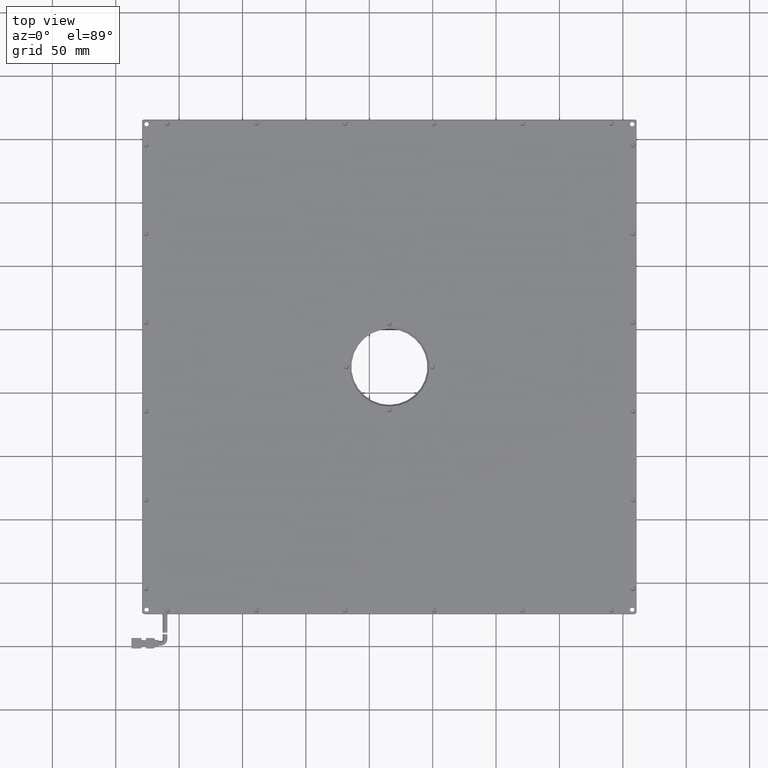
[diagram: clean part render]
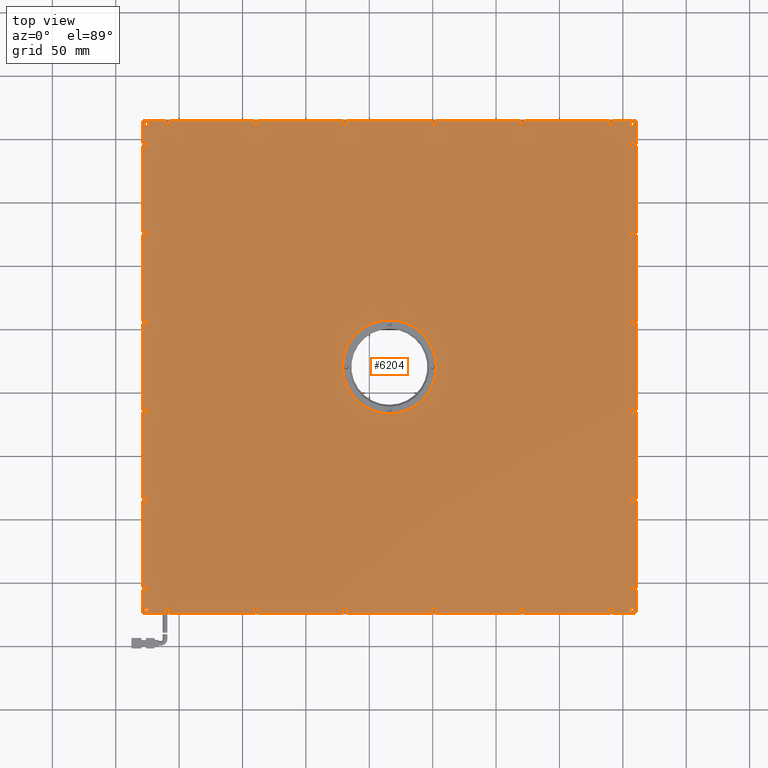
[diagram: same view with one face highlighted and labeled with its STEP entity id]
A machine part, top view. The second image highlights one B-rep face of the part: STEP entity #6204.
In plain terms, the highlighted planar face has unit normal (0, -0, 1).
Its self-contained STEP definition (entity closure, byte-faithful):
#106 = CARTESIAN_POINT ( 'NONE',  ( -228.6484017985390300, -173.3699202458416000, 8.249999999999998200 ) ) ;
#121 = ORIENTED_EDGE ( 'NONE', *, *, #3332, .F. ) ;
#127 = EDGE_CURVE ( 'NONE', #14940, #16800, #13112, .T. ) ;
#214 = CARTESIAN_POINT ( 'NONE',  ( 159.8515982014210400, -154.5770270270286900, 8.250000000019097600 ) ) ;
#224 = EDGE_CURVE ( 'NONE', #21458, #5366, #345, .T. ) ;
#294 = CIRCLE ( 'NONE', #15483, 2.000000000020818500 ) ;
#329 = VERTEX_POINT ( 'NONE', #16714 ) ;
#335 = DIRECTION ( 'NONE',  ( 0.0000000000000000000, -1.000000000000000000, -0.0000000000000000000 ) ) ;
#344 = EDGE_LOOP ( 'NONE', ( #16915, #20841 ) ) ;
#345 = CIRCLE ( 'NONE', #17201, 2.000000000001889200 ) ;
#376 = CIRCLE ( 'NONE', #1715, 1.999999999998169900 ) ;
#400 = DIRECTION ( 'NONE',  ( -0.0000000000000000000, 0.0000000000000000000, -1.000000000000000000 ) ) ;
#469 = CARTESIAN_POINT ( 'NONE',  ( -225.6484017985369500, 211.9229729729738900, 8.250000000000000000 ) ) ;
#560 = FACE_BOUND ( 'NONE', #13933, .T. ) ;
#561 = AXIS2_PLACEMENT_3D ( 'NONE', #13973, #8873, #12468 ) ;
#616 = ORIENTED_EDGE ( 'NONE', *, *, #2227, .T. ) ;
#702 = DIRECTION ( 'NONE',  ( 1.000000000000000000, 0.0000000000000000000, 0.0000000000000000000 ) ) ;
#719 = CARTESIAN_POINT ( 'NONE',  ( 157.3515982014610000, 211.9229729729719300, 8.250000000000000000 ) ) ;
#804 = CIRCLE ( 'NONE', #11376, 37.00000000000000000 ) ;
#848 = CARTESIAN_POINT ( 'NONE',  ( -226.1484017985371200, 195.4229729729738900, 8.250000000019097600 ) ) ;
#920 = VERTEX_POINT ( 'NONE', #11372 ) ;
#933 = DIRECTION ( 'NONE',  ( 1.000000000000000000, 0.0000000000000000000, 0.0000000000000000000 ) ) ;
#965 = DIRECTION ( 'NONE',  ( -0.0000000000000000000, 0.0000000000000000000, -1.000000000000000000 ) ) ;
#1048 = CIRCLE ( 'NONE', #17950, 1.999999999959895000 ) ;
#1051 = DIRECTION ( 'NONE',  ( 1.000000000000000000, 0.0000000000000000000, 0.0000000000000000000 ) ) ;
#1062 = LINE ( 'NONE', #5685, #1857 ) ;
#1084 = DIRECTION ( 'NONE',  ( -0.0000000000000000000, 0.0000000000000000000, -1.000000000000000000 ) ) ;
#1097 = DIRECTION ( 'NONE',  ( 1.000000000000000000, 0.0000000000000000000, 0.0000000000000000000 ) ) ;
#1115 = CIRCLE ( 'NONE', #8807, 2.000000000020929500 ) ;
#1166 = DIRECTION ( 'NONE',  ( 0.0000000000000000000, 0.0000000000000000000, -1.000000000000000000 ) ) ;
#1248 = AXIS2_PLACEMENT_3D ( 'NONE', #469, #17506, #17430 ) ;
#1264 = AXIS2_PLACEMENT_3D ( 'NONE', #18135, #21480, #21404 ) ;
#1401 = VERTEX_POINT ( 'NONE', #12460 ) ;
#1459 = ORIENTED_EDGE ( 'NONE', *, *, #1553, .T. ) ;
#1488 = EDGE_CURVE ( 'NONE', #9508, #920, #5321, .T. ) ;
#1495 = EDGE_CURVE ( 'NONE', #18182, #11986, #20502, .T. ) ;
#1512 = AXIS2_PLACEMENT_3D ( 'NONE', #11261, #1084, #21407 ) ;
#1553 = EDGE_CURVE ( 'NONE', #7418, #10586, #6089, .T. ) ;
#1604 = DIRECTION ( 'NONE',  ( 1.000000000000000000, 0.0000000000000000000, 0.0000000000000000000 ) ) ;
#1632 = EDGE_CURVE ( 'NONE', #13581, #17172, #3954, .T. ) ;
#1641 = FACE_BOUND ( 'NONE', #1968, .T. ) ;
#1692 = VERTEX_POINT ( 'NONE', #8111 ) ;
#1715 = AXIS2_PLACEMENT_3D ( 'NONE', #15251, #6771, #8385 ) ;
#1740 = DIRECTION ( 'NONE',  ( 1.000000000000000000, 0.0000000000000000000, 0.0000000000000000000 ) ) ;
#1795 = EDGE_CURVE ( 'NONE', #19374, #7748, #10325, .T. ) ;
#1835 = VERTEX_POINT ( 'NONE', #2100 ) ;
#1839 = AXIS2_PLACEMENT_3D ( 'NONE', #11857, #8241, #1740 ) ;
#1857 = VECTOR ( 'NONE', #9172, 1000.000000000000000 ) ;
#1896 = EDGE_LOOP ( 'NONE', ( #12820, #2421 ) ) ;
#1968 = EDGE_LOOP ( 'NONE', ( #4720, #3666 ) ) ;
#1984 = ORIENTED_EDGE ( 'NONE', *, *, #14584, .T. ) ;
#2009 = CIRCLE ( 'NONE', #18911, 2.000000000034613200 ) ;
#2010 = VERTEX_POINT ( 'NONE', #19399 ) ;
#2051 = CARTESIAN_POINT ( 'NONE',  ( 155.8515982015017300, 125.4229729729713400, 8.250000000019097600 ) ) ;
#2072 = AXIS2_PLACEMENT_3D ( 'NONE', #19282, #20976, #17614 ) ;
#2091 = ORIENTED_EDGE ( 'NONE', *, *, #14010, .T. ) ;
#2100 = CARTESIAN_POINT ( 'NONE',  ( 159.8515982014210400, 195.4229729729713400, 8.250000000019097600 ) ) ;
#2109 = DIRECTION ( 'NONE',  ( 0.0000000000000000000, 0.0000000000000000000, -1.000000000000000000 ) ) ;
#2169 = DIRECTION ( 'NONE',  ( -0.0000000000000000000, 0.0000000000000000000, -1.000000000000000000 ) ) ;
#2174 = VERTEX_POINT ( 'NONE', #6108 ) ;
#2227 = EDGE_CURVE ( 'NONE', #8717, #11346, #17779, .T. ) ;
#2291 = EDGE_LOOP ( 'NONE', ( #11383, #16863 ) ) ;
#2309 = CARTESIAN_POINT ( 'NONE',  ( -225.6484017985369500, 211.9229729729738900, 8.250000000000000000 ) ) ;
#2343 = CARTESIAN_POINT ( 'NONE',  ( -228.1484017985390300, 125.4229729729738900, 8.250000000019097600 ) ) ;
#2377 = DIRECTION ( 'NONE',  ( -0.0000000000000000000, 0.0000000000000000000, -1.000000000000000000 ) ) ;
#2421 = ORIENTED_EDGE ( 'NONE', *, *, #224, .T. ) ;
#2438 = CARTESIAN_POINT ( 'NONE',  ( -139.1484017985389100, -171.5770270270280400, 8.250000000019097600 ) ) ;
#2452 = CIRCLE ( 'NONE', #1839, 2.000000000034613200 ) ;
#2574 = ORIENTED_EDGE ( 'NONE', *, *, #4729, .T. ) ;
#2581 = DIRECTION ( 'NONE',  ( 1.000000000000000000, 0.0000000000000000000, 0.0000000000000000000 ) ) ;
#2610 = EDGE_CURVE ( 'NONE', #6716, #9425, #16122, .T. ) ;
#2617 = EDGE_CURVE ( 'NONE', #14754, #9397, #21477, .T. ) ;
#2682 = VERTEX_POINT ( 'NONE', #11279 ) ;
#2683 = FACE_BOUND ( 'NONE', #4747, .T. ) ;
#2696 = AXIS2_PLACEMENT_3D ( 'NONE', #10558, #5439, #6923 ) ;
#2735 = AXIS2_PLACEMENT_3D ( 'NONE', #4549, #14838, #4622 ) ;
#2747 = AXIS2_PLACEMENT_3D ( 'NONE', #20487, #13712, #15394 ) ;
#2751 = CARTESIAN_POINT ( 'NONE',  ( -228.6484017985390300, 214.2158661917852100, 8.249999999999998200 ) ) ;
#2867 = ORIENTED_EDGE ( 'NONE', *, *, #3452, .T. ) ;
#2869 = DIRECTION ( 'NONE',  ( 1.000000000000000000, 0.0000000000000000000, 0.0000000000000000000 ) ) ;
#2908 = EDGE_LOOP ( 'NONE', ( #4770, #16419 ) ) ;
#2924 = EDGE_CURVE ( 'NONE', #7273, #9154, #17974, .T. ) ;
#2957 = CIRCLE ( 'NONE', #1248, 1.749999999999973800 ) ;
#3014 = CARTESIAN_POINT ( 'NONE',  ( -71.14840179852360800, 212.4229729729719100, 8.249999999962254200 ) ) ;
#3057 = CARTESIAN_POINT ( 'NONE',  ( 138.8515982014401100, 212.4229729729719300, 8.250000000019097600 ) ) ;
#3071 = LINE ( 'NONE', #17996, #11338 ) ;
#3140 = AXIS2_PLACEMENT_3D ( 'NONE', #7783, #13014, #17792 ) ;
#3162 = EDGE_LOOP ( 'NONE', ( #21346, #16909 ) ) ;
#3210 = FACE_BOUND ( 'NONE', #5680, .T. ) ;
#3226 = EDGE_LOOP ( 'NONE', ( #18514, #8625 ) ) ;
#3256 = CIRCLE ( 'NONE', #6994, 1.999999999984486400 ) ;
#3315 = DIRECTION ( 'NONE',  ( -0.0000000000000000000, 0.0000000000000000000, -1.000000000000000000 ) ) ;
#3324 = CIRCLE ( 'NONE', #10747, 1.999999999960588900 ) ;
#3332 = EDGE_CURVE ( 'NONE', #17309, #10586, #21880, .T. ) ;
#3359 = EDGE_CURVE ( 'NONE', #15101, #17592, #13352, .T. ) ;
#3452 = EDGE_CURVE ( 'NONE', #329, #10811, #3486, .T. ) ;
#3481 = CARTESIAN_POINT ( 'NONE',  ( -141.1484017985304400, 212.4229729729718800, 8.250000000019097600 ) ) ;
#3486 = CIRCLE ( 'NONE', #14683, 1.999999999991314300 ) ;
#3495 = EDGE_CURVE ( 'NONE', #1692, #16052, #17055, .T. ) ;
#3606 = DIRECTION ( 'NONE',  ( -0.0000000000000000000, 0.0000000000000000000, -1.000000000000000000 ) ) ;
#3633 = CARTESIAN_POINT ( 'NONE',  ( -227.3984017985369200, 211.9229729729738900, 8.250000000000000000 ) ) ;
#3666 = ORIENTED_EDGE ( 'NONE', *, *, #19639, .T. ) ;
#3743 = FACE_BOUND ( 'NONE', #5037, .T. ) ;
#3795 = DIRECTION ( 'NONE',  ( 1.000000000000000000, 0.0000000000000000000, 0.0000000000000000000 ) ) ;
#3835 = AXIS2_PLACEMENT_3D ( 'NONE', #20996, #2377, #16068 ) ;
#3896 = DIRECTION ( 'NONE',  ( -0.0000000000000000000, 0.0000000000000000000, -1.000000000000000000 ) ) ;
#3917 = CARTESIAN_POINT ( 'NONE',  ( 159.8515982014210400, 125.4229729729713400, 8.250000000019097600 ) ) ;
#3954 = CIRCLE ( 'NONE', #20255, 1.999999999959645200 ) ;
#3987 = DIRECTION ( 'NONE',  ( 1.000000000000000000, 0.0000000000000000000, 0.0000000000000000000 ) ) ;
#3994 = FACE_BOUND ( 'NONE', #9924, .T. ) ;
#4031 = CARTESIAN_POINT ( 'NONE',  ( 70.85159820146114400, -171.5770270270280100, 8.250000000019097600 ) ) ;
#4056 = CARTESIAN_POINT ( 'NONE',  ( 155.8515982015012500, 55.42297297297133700, 8.250000000019097600 ) ) ;
#4089 = CIRCLE ( 'NONE', #21038, 1.999999999991425300 ) ;
#4165 = CARTESIAN_POINT ( 'NONE',  ( 155.6015982014610300, 211.9229729729719300, 8.250000000000000000 ) ) ;
#4273 = CARTESIAN_POINT ( 'NONE',  ( 68.85159820143347500, -171.5770270270280100, 8.250000000019097600 ) ) ;
#4282 = CARTESIAN_POINT ( 'NONE',  ( -224.1484017985366700, 55.42297297297388100, 8.250000000019097600 ) ) ;
#4316 = DIRECTION ( 'NONE',  ( 1.000000000000000000, 0.0000000000000000000, 0.0000000000000000000 ) ) ;
#4321 = DIRECTION ( 'NONE',  ( -0.0000000000000000000, 0.0000000000000000000, -1.000000000000000000 ) ) ;
#4356 = CARTESIAN_POINT ( 'NONE',  ( -229.1484017985389700, -174.0770270270280900, 8.250000000000026600 ) ) ;
#4397 = CARTESIAN_POINT ( 'NONE',  ( -34.14840179853894900, 20.42297297297193700, 8.249999999999998200 ) ) ;
#4400 = AXIS2_PLACEMENT_3D ( 'NONE', #9958, #4916, #14818 ) ;
#4503 = DIRECTION ( 'NONE',  ( -0.0000000000000000000, 0.0000000000000000000, -1.000000000000000000 ) ) ;
#4536 = CIRCLE ( 'NONE', #21218, 2.000000000001167500 ) ;
#4549 = CARTESIAN_POINT ( 'NONE',  ( 157.8515982014611400, 55.42297297297133700, 8.250000000019097600 ) ) ;
#4568 = ORIENTED_EDGE ( 'NONE', *, *, #19386, .T. ) ;
#4622 = DIRECTION ( 'NONE',  ( 1.000000000000000000, 0.0000000000000000000, 0.0000000000000000000 ) ) ;
#4720 = ORIENTED_EDGE ( 'NONE', *, *, #15001, .T. ) ;
#4729 = EDGE_CURVE ( 'NONE', #12447, #8617, #16960, .T. ) ;
#4747 = EDGE_LOOP ( 'NONE', ( #10976, #2574 ) ) ;
#4770 = ORIENTED_EDGE ( 'NONE', *, *, #17518, .T. ) ;
#4782 = AXIS2_PLACEMENT_3D ( 'NONE', #4031, #3896, #5763 ) ;
#4806 = AXIS2_PLACEMENT_3D ( 'NONE', #2309, #17493, #19384 ) ;
#4883 = CIRCLE ( 'NONE', #7607, 2.000000000027660100 ) ;
#4893 = CARTESIAN_POINT ( 'NONE',  ( 72.85159820148878400, 212.4229729729719100, 8.250000000019097600 ) ) ;
#4916 = DIRECTION ( 'NONE',  ( -0.0000000000000000000, 0.0000000000000000000, -1.000000000000000000 ) ) ;
#4936 = CARTESIAN_POINT ( 'NONE',  ( 157.8515982014613700, 125.4229729729713400, 8.250000000019097600 ) ) ;
#4950 = CARTESIAN_POINT ( 'NONE',  ( 159.8515982014210400, -14.57702702702867700, 8.250000000019097600 ) ) ;
#4985 = DIRECTION ( 'NONE',  ( 0.0000000000000000000, 0.0000000000000000000, -1.000000000000000000 ) ) ;
#5024 = ORIENTED_EDGE ( 'NONE', *, *, #5280, .F. ) ;
#5037 = EDGE_LOOP ( 'NONE', ( #18362, #11466 ) ) ;
#5041 = DIRECTION ( 'NONE',  ( -0.0000000000000000000, 0.0000000000000000000, -1.000000000000000000 ) ) ;
#5046 = AXIS2_PLACEMENT_3D ( 'NONE', #15491, #2109, #17213 ) ;
#5061 = DIRECTION ( 'NONE',  ( 1.000000000000000000, 0.0000000000000000000, 0.0000000000000000000 ) ) ;
#5082 = FACE_BOUND ( 'NONE', #13926, .T. ) ;
#5096 = ORIENTED_EDGE ( 'NONE', *, *, #8469, .T. ) ;
#5117 = AXIS2_PLACEMENT_3D ( 'NONE', #5485, #7187, #15445 ) ;
#5260 = ORIENTED_EDGE ( 'NONE', *, *, #10436, .T. ) ;
#5280 = EDGE_CURVE ( 'NONE', #12637, #7448, #15875, .T. ) ;
#5299 = DIRECTION ( 'NONE',  ( -0.0000000000000000000, 0.0000000000000000000, -1.000000000000000000 ) ) ;
#5321 = CIRCLE ( 'NONE', #1264, 2.000000000002610800 ) ;
#5322 = ORIENTED_EDGE ( 'NONE', *, *, #16496, .T. ) ;
#5326 = EDGE_CURVE ( 'NONE', #2682, #21392, #8626, .T. ) ;
#5366 = VERTEX_POINT ( 'NONE', #4282 ) ;
#5372 = DIRECTION ( 'NONE',  ( 1.000000000000000000, 0.0000000000000000000, 0.0000000000000000000 ) ) ;
#5392 = CIRCLE ( 'NONE', #16831, 37.00000000000000000 ) ;
#5439 = DIRECTION ( 'NONE',  ( -0.0000000000000000000, 0.0000000000000000000, -1.000000000000000000 ) ) ;
#5465 = EDGE_LOOP ( 'NONE', ( #17263, #19010 ) ) ;
#5485 = CARTESIAN_POINT ( 'NONE',  ( 70.85159820146100200, 212.4229729729719100, 8.250000000019097600 ) ) ;
#5542 = CIRCLE ( 'NONE', #14119, 1.999999999959645200 ) ;
#5556 = EDGE_CURVE ( 'NONE', #16183, #2174, #8370, .T. ) ;
#5597 = DIRECTION ( 'NONE',  ( -0.0000000000000000000, 0.0000000000000000000, -1.000000000000000000 ) ) ;
#5603 = VERTEX_POINT ( 'NONE', #13851 ) ;
#5615 = FACE_BOUND ( 'NONE', #15186, .T. ) ;
#5622 = EDGE_CURVE ( 'NONE', #11986, #18182, #12144, .T. ) ;
#5680 = EDGE_LOOP ( 'NONE', ( #11280, #8072 ) ) ;
#5685 = CARTESIAN_POINT ( 'NONE',  ( -228.6484017985390300, 215.4229729729718800, 8.249999999999998200 ) ) ;
#5753 = CIRCLE ( 'NONE', #7746, 2.000000000000445900 ) ;
#5763 = DIRECTION ( 'NONE',  ( 1.000000000000000000, 0.0000000000000000000, 0.0000000000000000000 ) ) ;
#5785 = CIRCLE ( 'NONE', #15771, 2.000000000002610800 ) ;
#5809 = EDGE_LOOP ( 'NONE', ( #616, #10785 ) ) ;
#5820 = AXIS2_PLACEMENT_3D ( 'NONE', #6275, #11109, #933 ) ;
#5843 = ORIENTED_EDGE ( 'NONE', *, *, #9017, .T. ) ;
#5866 = CARTESIAN_POINT ( 'NONE',  ( 140.8515982014610300, 212.4229729729719300, 8.250000000019097600 ) ) ;
#5878 = EDGE_LOOP ( 'NONE', ( #8252, #5322 ) ) ;
#5968 = AXIS2_PLACEMENT_3D ( 'NONE', #9489, #14635, #16872 ) ;
#5974 = ORIENTED_EDGE ( 'NONE', *, *, #11795, .T. ) ;
#6013 = VERTEX_POINT ( 'NONE', #7429 ) ;
#6071 = EDGE_CURVE ( 'NONE', #6013, #20404, #4883, .T. ) ;
#6089 = LINE ( 'NONE', #12905, #11137 ) ;
#6108 = CARTESIAN_POINT ( 'NONE',  ( -224.1484017985366700, 125.4229729729738900, 8.250000000019097600 ) ) ;
#6147 = DIRECTION ( 'NONE',  ( 1.000000000000000000, 0.0000000000000000000, 0.0000000000000000000 ) ) ;
#6148 = FACE_BOUND ( 'NONE', #17346, .T. ) ;
#6196 = VERTEX_POINT ( 'NONE', #2751 ) ;
#6204 = ADVANCED_FACE ( 'NONE', ( #19762, #15726, #18148, #10660, #1641, #5082, #3994, #6679, #560, #13070, #6148, #18690, #19229, #20813, #10124, #13619, #21610, #5615, #12010, #3743, #17058, #3210, #10913, #20014, #14138, #2683, #9585, #8510, #12531, #7981 ), #8233, .T. ) ;
#6225 = DIRECTION ( 'NONE',  ( -0.0000000000000000000, 0.0000000000000000000, -1.000000000000000000 ) ) ;
#6233 = ORIENTED_EDGE ( 'NONE', *, *, #13681, .F. ) ;
#6247 = ORIENTED_EDGE ( 'NONE', *, *, #17372, .T. ) ;
#6275 = CARTESIAN_POINT ( 'NONE',  ( -225.6484017985389100, -171.0770270270280700, 8.250000000000000000 ) ) ;
#6296 = AXIS2_PLACEMENT_3D ( 'NONE', #10529, #8578, #18901 ) ;
#6366 = EDGE_CURVE ( 'NONE', #2174, #16183, #4536, .T. ) ;
#6398 = EDGE_CURVE ( 'NONE', #9425, #6716, #19496, .T. ) ;
#6407 = CARTESIAN_POINT ( 'NONE',  ( 155.6015982014604000, -171.0770270270286900, 8.250000000000000000 ) ) ;
#6474 = CARTESIAN_POINT ( 'NONE',  ( -229.1484017985390300, 215.4229729729718800, 8.249999999999998200 ) ) ;
#6476 = CIRCLE ( 'NONE', #6806, 1.999999999991314300 ) ;
#6520 = EDGE_CURVE ( 'NONE', #9876, #5603, #294, .T. ) ;
#6528 = DIRECTION ( 'NONE',  ( 1.000000000000000000, 0.0000000000000000000, 0.0000000000000000000 ) ) ;
#6630 = VERTEX_POINT ( 'NONE', #4893 ) ;
#6679 = FACE_BOUND ( 'NONE', #344, .T. ) ;
#6692 = ORIENTED_EDGE ( 'NONE', *, *, #12719, .T. ) ;
#6716 = VERTEX_POINT ( 'NONE', #21666 ) ;
#6725 = AXIS2_PLACEMENT_3D ( 'NONE', #8450, #11617, #8302 ) ;
#6757 = DIRECTION ( 'NONE',  ( 1.000000000000000000, 7.116814260417670700E-017, 7.116814260417670700E-017 ) ) ;
#6771 = DIRECTION ( 'NONE',  ( -0.0000000000000000000, 0.0000000000000000000, -1.000000000000000000 ) ) ;
#6806 = AXIS2_PLACEMENT_3D ( 'NONE', #16095, #4321, #702 ) ;
#6923 = DIRECTION ( 'NONE',  ( 1.000000000000000000, 0.0000000000000000000, 0.0000000000000000000 ) ) ;
#6994 = AXIS2_PLACEMENT_3D ( 'NONE', #13970, #3606, #15508 ) ;
#7179 = CIRCLE ( 'NONE', #2735, 1.999999999959895000 ) ;
#7187 = DIRECTION ( 'NONE',  ( -0.0000000000000000000, 0.0000000000000000000, -1.000000000000000000 ) ) ;
#7273 = VERTEX_POINT ( 'NONE', #4950 ) ;
#7320 = VERTEX_POINT ( 'NONE', #15495 ) ;
#7356 = CARTESIAN_POINT ( 'NONE',  ( -228.1484017985404500, 55.42297297297388100, 8.250000000019097600 ) ) ;
#7418 = VERTEX_POINT ( 'NONE', #13886 ) ;
#7429 = CARTESIAN_POINT ( 'NONE',  ( 72.85159820148879800, -171.5770270270280100, 8.250000000019097600 ) ) ;
#7448 = VERTEX_POINT ( 'NONE', #18967 ) ;
#7499 = AXIS2_PLACEMENT_3D ( 'NONE', #19891, #12865, #1051 ) ;
#7594 = EDGE_CURVE ( 'NONE', #21393, #2010, #13255, .T. ) ;
#7607 = AXIS2_PLACEMENT_3D ( 'NONE', #12441, #2169, #19169 ) ;
#7624 = CARTESIAN_POINT ( 'NONE',  ( 142.8515982014819800, 212.4229729729719300, 8.250000000019097600 ) ) ;
#7634 = CARTESIAN_POINT ( 'NONE',  ( 157.3515982014603800, -171.0770270270286900, 8.250000000000000000 ) ) ;
#7638 = DIRECTION ( 'NONE',  ( -0.0000000000000000000, 0.0000000000000000000, -1.000000000000000000 ) ) ;
#7746 = AXIS2_PLACEMENT_3D ( 'NONE', #9699, #4503, #2869 ) ;
#7748 = VERTEX_POINT ( 'NONE', #10696 ) ;
#7773 = DIRECTION ( 'NONE',  ( 1.000000000000000000, 0.0000000000000000000, 0.0000000000000000000 ) ) ;
#7783 = CARTESIAN_POINT ( 'NONE',  ( 0.8515982014611136500, -171.5770270270280400, 8.250000000019097600 ) ) ;
#7818 = ORIENTED_EDGE ( 'NONE', *, *, #6398, .T. ) ;
#7844 = ORIENTED_EDGE ( 'NONE', *, *, #16862, .T. ) ;
#7981 = FACE_BOUND ( 'NONE', #21152, .T. ) ;
#8011 = EDGE_CURVE ( 'NONE', #7320, #19737, #9168, .T. ) ;
#8058 = VERTEX_POINT ( 'NONE', #10849 ) ;
#8072 = ORIENTED_EDGE ( 'NONE', *, *, #11387, .T. ) ;
#8111 = CARTESIAN_POINT ( 'NONE',  ( 2.851598201495615800, -171.5770270270280400, 8.250000000019097600 ) ) ;
#8135 = CARTESIAN_POINT ( 'NONE',  ( 155.8515982014998500, -154.5770270270286900, 8.250000000019097600 ) ) ;
#8178 = CIRCLE ( 'NONE', #5968, 2.000000000003332400 ) ;
#8232 = DIRECTION ( 'NONE',  ( -0.0000000000000000000, 0.0000000000000000000, -1.000000000000000000 ) ) ;
#8233 = PLANE ( 'NONE',  #12189 ) ;
#8241 = DIRECTION ( 'NONE',  ( -0.0000000000000000000, 0.0000000000000000000, -1.000000000000000000 ) ) ;
#8252 = ORIENTED_EDGE ( 'NONE', *, *, #3495, .T. ) ;
#8269 = EDGE_LOOP ( 'NONE', ( #11634, #11446 ) ) ;
#8279 = DIRECTION ( 'NONE',  ( 1.000000000000000000, 0.0000000000000000000, 0.0000000000000000000 ) ) ;
#8302 = DIRECTION ( 'NONE',  ( 1.000000000000000000, 0.0000000000000000000, 0.0000000000000000000 ) ) ;
#8370 = CIRCLE ( 'NONE', #2747, 2.000000000001167500 ) ;
#8385 = DIRECTION ( 'NONE',  ( 1.000000000000000000, 0.0000000000000000000, 0.0000000000000000000 ) ) ;
#8429 = CARTESIAN_POINT ( 'NONE',  ( 157.8515982014604300, -154.5770270270286900, 8.250000000019097600 ) ) ;
#8450 = CARTESIAN_POINT ( 'NONE',  ( -209.1484017985390600, 212.4229729729718800, 8.250000000019097600 ) ) ;
#8469 = EDGE_CURVE ( 'NONE', #8820, #6630, #9937, .T. ) ;
#8508 = VERTEX_POINT ( 'NONE', #12323 ) ;
#8510 = FACE_BOUND ( 'NONE', #3162, .T. ) ;
#8578 = DIRECTION ( 'NONE',  ( -0.0000000000000000000, 0.0000000000000000000, -1.000000000000000000 ) ) ;
#8586 = LINE ( 'NONE', #10722, #17671 ) ;
#8609 = CARTESIAN_POINT ( 'NONE',  ( -224.1484017985366700, -84.57702702702613400, 8.250000000019097600 ) ) ;
#8617 = VERTEX_POINT ( 'NONE', #21110 ) ;
#8625 = ORIENTED_EDGE ( 'NONE', *, *, #18368, .T. ) ;
#8626 = CIRCLE ( 'NONE', #9579, 1.999999999991425300 ) ;
#8634 = CARTESIAN_POINT ( 'NONE',  ( 159.6444914202745300, 214.9229729729719100, 8.250000000000003600 ) ) ;
#8717 = VERTEX_POINT ( 'NONE', #18065 ) ;
#8746 = CARTESIAN_POINT ( 'NONE',  ( 159.1015982014603500, -171.0770270270286900, 8.250000000000000000 ) ) ;
#8807 = AXIS2_PLACEMENT_3D ( 'NONE', #18734, #18815, #17147 ) ;
#8820 = VERTEX_POINT ( 'NONE', #13366 ) ;
#8836 = ORIENTED_EDGE ( 'NONE', *, *, #5556, .T. ) ;
#8857 = VERTEX_POINT ( 'NONE', #18435 ) ;
#8873 = DIRECTION ( 'NONE',  ( -0.0000000000000000000, 0.0000000000000000000, -1.000000000000000000 ) ) ;
#8959 = CARTESIAN_POINT ( 'NONE',  ( 159.6444914202743600, -174.0770270270280700, 8.249999999999998200 ) ) ;
#9016 = DIRECTION ( 'NONE',  ( 0.0000000000000000000, 0.0000000000000000000, -1.000000000000000000 ) ) ;
#9017 = EDGE_CURVE ( 'NONE', #20366, #11027, #1115, .T. ) ;
#9154 = VERTEX_POINT ( 'NONE', #18964 ) ;
#9168 = CIRCLE ( 'NONE', #4806, 1.749999999999973800 ) ;
#9172 = DIRECTION ( 'NONE',  ( -0.0000000000000000000, 1.000000000000000000, 0.0000000000000000000 ) ) ;
#9176 = AXIS2_PLACEMENT_3D ( 'NONE', #16954, #10383, #18765 ) ;
#9281 = CARTESIAN_POINT ( 'NONE',  ( -211.1484017985373200, 212.4229729729718800, 8.250000000019097600 ) ) ;
#9339 = DIRECTION ( 'NONE',  ( -0.0000000000000000000, 0.0000000000000000000, -1.000000000000000000 ) ) ;
#9341 = CARTESIAN_POINT ( 'NONE',  ( 157.8515982014611400, 55.42297297297133700, 8.250000000019097600 ) ) ;
#9397 = VERTEX_POINT ( 'NONE', #6407 ) ;
#9419 = CARTESIAN_POINT ( 'NONE',  ( -227.9412950173523300, 214.9229729729718800, 8.249999999999991100 ) ) ;
#9425 = VERTEX_POINT ( 'NONE', #11776 ) ;
#9489 = CARTESIAN_POINT ( 'NONE',  ( -226.1484017985400200, -84.57702702702613400, 8.250000000019097600 ) ) ;
#9508 = VERTEX_POINT ( 'NONE', #15396 ) ;
#9516 = CARTESIAN_POINT ( 'NONE',  ( -67.14840179855441700, 212.4229729729719100, 8.249999999962254200 ) ) ;
#9560 = VERTEX_POINT ( 'NONE', #20701 ) ;
#9577 = DIRECTION ( 'NONE',  ( 0.0000000000000000000, 0.0000000000000000000, -1.000000000000000000 ) ) ;
#9579 = AXIS2_PLACEMENT_3D ( 'NONE', #12697, #19658, #12553 ) ;
#9585 = FACE_BOUND ( 'NONE', #20604, .T. ) ;
#9663 = EDGE_LOOP ( 'NONE', ( #12201, #6692 ) ) ;
#9699 = CARTESIAN_POINT ( 'NONE',  ( -226.1484017985371200, 195.4229729729738900, 8.250000000019097600 ) ) ;
#9876 = VERTEX_POINT ( 'NONE', #16348 ) ;
#9924 = EDGE_LOOP ( 'NONE', ( #5843, #16440 ) ) ;
#9932 = DIRECTION ( 'NONE',  ( 1.000000000000000000, 0.0000000000000000000, 0.0000000000000000000 ) ) ;
#9937 = CIRCLE ( 'NONE', #5117, 2.000000000027784900 ) ;
#9958 = CARTESIAN_POINT ( 'NONE',  ( -209.1484017985390600, 212.4229729729718800, 8.250000000019097600 ) ) ;
#10019 = CARTESIAN_POINT ( 'NONE',  ( -229.1484017985390300, 214.9229729729718800, 8.249999999999998200 ) ) ;
#10038 = EDGE_CURVE ( 'NONE', #11851, #14496, #3256, .T. ) ;
#10061 = EDGE_LOOP ( 'NONE', ( #13657, #21444 ) ) ;
#10124 = FACE_BOUND ( 'NONE', #15812, .T. ) ;
#10152 = LINE ( 'NONE', #106, #14697 ) ;
#10172 = CARTESIAN_POINT ( 'NONE',  ( 157.3515982014603800, -171.0770270270286900, 8.250000000000000000 ) ) ;
#10325 = CIRCLE ( 'NONE', #18687, 2.000000000004082100 ) ;
#10383 = DIRECTION ( 'NONE',  ( -0.0000000000000000000, 0.0000000000000000000, -1.000000000000000000 ) ) ;
#10404 = VECTOR ( 'NONE', #6757, 1000.000000000000000 ) ;
#10436 = EDGE_CURVE ( 'NONE', #6630, #8820, #16545, .T. ) ;
#10487 = CARTESIAN_POINT ( 'NONE',  ( -227.3984017985388800, -171.0770270270280700, 8.250000000000000000 ) ) ;
#10522 = DIRECTION ( 'NONE',  ( 1.000000000000000000, 0.0000000000000000000, 0.0000000000000000000 ) ) ;
#10529 = CARTESIAN_POINT ( 'NONE',  ( -69.14840179853901200, 212.4229729729719100, 8.249999999962254200 ) ) ;
#10558 = CARTESIAN_POINT ( 'NONE',  ( 157.8515982014616000, 195.4229729729713400, 8.250000000019097600 ) ) ;
#10586 = VERTEX_POINT ( 'NONE', #8634 ) ;
#10660 = FACE_BOUND ( 'NONE', #10061, .T. ) ;
#10667 = EDGE_CURVE ( 'NONE', #1835, #8058, #15454, .T. ) ;
#10683 = AXIS2_PLACEMENT_3D ( 'NONE', #10172, #4985, #5061 ) ;
#10696 = CARTESIAN_POINT ( 'NONE',  ( -228.1484017985448500, -154.5770270270261300, 8.250000000019097600 ) ) ;
#10722 = CARTESIAN_POINT ( 'NONE',  ( 160.3515982014610000, 215.4229729729718800, 8.249999999999998200 ) ) ;
#10737 = DIRECTION ( 'NONE',  ( 1.000000000000000000, 0.0000000000000000000, 0.0000000000000000000 ) ) ;
#10747 = AXIS2_PLACEMENT_3D ( 'NONE', #8429, #5041, #22103 ) ;
#10779 = AXIS2_PLACEMENT_3D ( 'NONE', #848, #21473, #17975 ) ;
#10785 = ORIENTED_EDGE ( 'NONE', *, *, #12655, .T. ) ;
#10811 = VERTEX_POINT ( 'NONE', #15486 ) ;
#10818 = CARTESIAN_POINT ( 'NONE',  ( -67.14840179855441700, -171.5770270270280400, 8.249999999962254200 ) ) ;
#10849 = CARTESIAN_POINT ( 'NONE',  ( 155.8515982015021800, 195.4229729729713400, 8.250000000019097600 ) ) ;
#10892 = CIRCLE ( 'NONE', #6296, 1.999999999984597400 ) ;
#10909 = DIRECTION ( 'NONE',  ( -0.0000000000000000000, 0.0000000000000000000, -1.000000000000000000 ) ) ;
#10913 = FACE_BOUND ( 'NONE', #1896, .T. ) ;
#10976 = ORIENTED_EDGE ( 'NONE', *, *, #22110, .T. ) ;
#10981 = DIRECTION ( 'NONE',  ( 1.000000000000000000, 0.0000000000000000000, 0.0000000000000000000 ) ) ;
#11027 = VERTEX_POINT ( 'NONE', #3057 ) ;
#11050 = DIRECTION ( 'NONE',  ( -1.000000000000000000, -7.116814260417670700E-017, 7.116814260417670700E-017 ) ) ;
#11081 = LINE ( 'NONE', #8959, #17763 ) ;
#11109 = DIRECTION ( 'NONE',  ( 0.0000000000000000000, 0.0000000000000000000, -1.000000000000000000 ) ) ;
#11112 = CARTESIAN_POINT ( 'NONE',  ( 159.8515982014210400, 55.42297297297133700, 8.250000000019097600 ) ) ;
#11121 = DIRECTION ( 'NONE',  ( 1.000000000000000000, 0.0000000000000000000, 0.0000000000000000000 ) ) ;
#11131 = CARTESIAN_POINT ( 'NONE',  ( 157.8515982014606600, -84.57702702702867700, 8.250000000019097600 ) ) ;
#11137 = VECTOR ( 'NONE', #14686, 1000.000000000000100 ) ;
#11146 = CARTESIAN_POINT ( 'NONE',  ( -226.1484017985392800, -14.57702702702612300, 8.250000000019097600 ) ) ;
#11225 = CARTESIAN_POINT ( 'NONE',  ( 140.8515982014611400, -171.5770270270280100, 8.250000000019097600 ) ) ;
#11261 = CARTESIAN_POINT ( 'NONE',  ( 70.85159820146100200, 212.4229729729719100, 8.250000000019097600 ) ) ;
#11278 = ORIENTED_EDGE ( 'NONE', *, *, #18097, .T. ) ;
#11279 = CARTESIAN_POINT ( 'NONE',  ( -137.1484017985475800, 212.4229729729718800, 8.250000000019097600 ) ) ;
#11280 = ORIENTED_EDGE ( 'NONE', *, *, #1488, .T. ) ;
#11307 = DIRECTION ( 'NONE',  ( 1.000000000000000000, 0.0000000000000000000, 0.0000000000000000000 ) ) ;
#11338 = VECTOR ( 'NONE', #12686, 1000.000000000000100 ) ;
#11346 = VERTEX_POINT ( 'NONE', #9281 ) ;
#11372 = CARTESIAN_POINT ( 'NONE',  ( -228.1484017985419000, -14.57702702702612300, 8.250000000019097600 ) ) ;
#11376 = AXIS2_PLACEMENT_3D ( 'NONE', #4397, #14523, #4316 ) ;
#11383 = ORIENTED_EDGE ( 'NONE', *, *, #7594, .T. ) ;
#11387 = EDGE_CURVE ( 'NONE', #920, #9508, #5785, .T. ) ;
#11414 = CARTESIAN_POINT ( 'NONE',  ( -223.8984017985389100, -171.0770270270280700, 8.250000000000000000 ) ) ;
#11446 = ORIENTED_EDGE ( 'NONE', *, *, #18948, .T. ) ;
#11466 = ORIENTED_EDGE ( 'NONE', *, *, #11517, .T. ) ;
#11517 = EDGE_CURVE ( 'NONE', #7748, #19374, #16706, .T. ) ;
#11571 = ORIENTED_EDGE ( 'NONE', *, *, #2617, .T. ) ;
#11617 = DIRECTION ( 'NONE',  ( -0.0000000000000000000, 0.0000000000000000000, -1.000000000000000000 ) ) ;
#11634 = ORIENTED_EDGE ( 'NONE', *, *, #5326, .T. ) ;
#11776 = CARTESIAN_POINT ( 'NONE',  ( 159.8515982014210400, -84.57702702702867700, 8.250000000019097600 ) ) ;
#11795 = EDGE_CURVE ( 'NONE', #12637, #14767, #11081, .T. ) ;
#11851 = VERTEX_POINT ( 'NONE', #10818 ) ;
#11857 = CARTESIAN_POINT ( 'NONE',  ( 0.8515982014610026200, 212.4229729729719100, 8.250000000019097600 ) ) ;
#11899 = EDGE_CURVE ( 'NONE', #17309, #6196, #3071, .T. ) ;
#11986 = VERTEX_POINT ( 'NONE', #11414 ) ;
#12010 = FACE_BOUND ( 'NONE', #9663, .T. ) ;
#12011 = CARTESIAN_POINT ( 'NONE',  ( -226.1484017985407600, -154.5770270270261300, 8.250000000019097600 ) ) ;
#12128 = AXIS2_PLACEMENT_3D ( 'NONE', #15921, #10909, #15850 ) ;
#12144 = CIRCLE ( 'NONE', #5046, 1.749999999999973800 ) ;
#12182 = ORIENTED_EDGE ( 'NONE', *, *, #16470, .T. ) ;
#12189 = AXIS2_PLACEMENT_3D ( 'NONE', #6474, #21970, #18348 ) ;
#12195 = CIRCLE ( 'NONE', #2696, 1.999999999959423100 ) ;
#12201 = ORIENTED_EDGE ( 'NONE', *, *, #18564, .T. ) ;
#12323 = CARTESIAN_POINT ( 'NONE',  ( 2.851598201461053300, 20.42297297297193700, 8.249999999999998200 ) ) ;
#12366 = CARTESIAN_POINT ( 'NONE',  ( 0.8515982014611136500, -171.5770270270280400, 8.250000000019097600 ) ) ;
#12441 = CARTESIAN_POINT ( 'NONE',  ( 70.85159820146114400, -171.5770270270280100, 8.250000000019097600 ) ) ;
#12447 = VERTEX_POINT ( 'NONE', #4165 ) ;
#12460 = CARTESIAN_POINT ( 'NONE',  ( -207.1484017985407600, -171.5770270270280700, 8.250000000019097600 ) ) ;
#12468 = DIRECTION ( 'NONE',  ( 1.000000000000000000, 0.0000000000000000000, 0.0000000000000000000 ) ) ;
#12531 = FACE_BOUND ( 'NONE', #16337, .T. ) ;
#12553 = DIRECTION ( 'NONE',  ( 1.000000000000000000, 0.0000000000000000000, 0.0000000000000000000 ) ) ;
#12637 = VERTEX_POINT ( 'NONE', #21757 ) ;
#12655 = EDGE_CURVE ( 'NONE', #11346, #8717, #17402, .T. ) ;
#12682 = CIRCLE ( 'NONE', #12699, 2.000000000020929500 ) ;
#12686 = DIRECTION ( 'NONE',  ( -0.7071067811865335800, -0.7071067811865613400, 0.0000000000000000000 ) ) ;
#12697 = CARTESIAN_POINT ( 'NONE',  ( -139.1484017985390300, 212.4229729729718800, 8.250000000019097600 ) ) ;
#12699 = AXIS2_PLACEMENT_3D ( 'NONE', #5866, #7638, #10981 ) ;
#12702 = DIRECTION ( 'NONE',  ( 0.0000000000000000000, 0.0000000000000000000, -1.000000000000000000 ) ) ;
#12718 = ORIENTED_EDGE ( 'NONE', *, *, #6520, .T. ) ;
#12719 = EDGE_CURVE ( 'NONE', #19566, #1401, #376, .T. ) ;
#12766 = ORIENTED_EDGE ( 'NONE', *, *, #8011, .T. ) ;
#12780 = AXIS2_PLACEMENT_3D ( 'NONE', #14251, #21107, #14035 ) ;
#12820 = ORIENTED_EDGE ( 'NONE', *, *, #16144, .T. ) ;
#12839 = CARTESIAN_POINT ( 'NONE',  ( -226.1484017985385700, 55.42297297297388100, 8.250000000019097600 ) ) ;
#12865 = DIRECTION ( 'NONE',  ( -0.0000000000000000000, 0.0000000000000000000, -1.000000000000000000 ) ) ;
#12901 = CIRCLE ( 'NONE', #20168, 1.749999999999973800 ) ;
#12905 = CARTESIAN_POINT ( 'NONE',  ( 160.3515982014610000, 214.2158661917854400, 8.249999999999998200 ) ) ;
#12925 = EDGE_CURVE ( 'NONE', #8508, #21715, #5392, .T. ) ;
#12952 = DIRECTION ( 'NONE',  ( -0.0000000000000000000, 0.0000000000000000000, -1.000000000000000000 ) ) ;
#12974 = EDGE_CURVE ( 'NONE', #9397, #14754, #19785, .T. ) ;
#13014 = DIRECTION ( 'NONE',  ( -0.0000000000000000000, 0.0000000000000000000, -1.000000000000000000 ) ) ;
#13070 = FACE_BOUND ( 'NONE', #16151, .T. ) ;
#13087 = AXIS2_PLACEMENT_3D ( 'NONE', #17298, #19044, #10522 ) ;
#13108 = CARTESIAN_POINT ( 'NONE',  ( -71.14840179852338100, -171.5770270270280400, 8.249999999962254200 ) ) ;
#13112 = CIRCLE ( 'NONE', #2072, 1.999999999984597400 ) ;
#13255 = CIRCLE ( 'NONE', #10779, 2.000000000000445900 ) ;
#13352 = CIRCLE ( 'NONE', #12128, 1.999999999960588900 ) ;
#13366 = CARTESIAN_POINT ( 'NONE',  ( 68.85159820143322000, 212.4229729729719100, 8.250000000019097600 ) ) ;
#13514 = EDGE_CURVE ( 'NONE', #16800, #14940, #10892, .T. ) ;
#13581 = VERTEX_POINT ( 'NONE', #2051 ) ;
#13619 = FACE_BOUND ( 'NONE', #5878, .T. ) ;
#13657 = ORIENTED_EDGE ( 'NONE', *, *, #13514, .T. ) ;
#13681 = EDGE_CURVE ( 'NONE', #15554, #6196, #1062, .T. ) ;
#13712 = DIRECTION ( 'NONE',  ( -0.0000000000000000000, 0.0000000000000000000, -1.000000000000000000 ) ) ;
#13851 = CARTESIAN_POINT ( 'NONE',  ( 138.8515982014403400, -171.5770270270280100, 8.250000000019097600 ) ) ;
#13886 = CARTESIAN_POINT ( 'NONE',  ( 160.3515982014610000, 214.2158661917854400, 8.249999999999992900 ) ) ;
#13926 = EDGE_LOOP ( 'NONE', ( #5260, #5096 ) ) ;
#13933 = EDGE_LOOP ( 'NONE', ( #11278, #14154 ) ) ;
#13943 = CARTESIAN_POINT ( 'NONE',  ( -226.1484017985378300, 125.4229729729738900, 8.250000000019097600 ) ) ;
#13970 = CARTESIAN_POINT ( 'NONE',  ( -69.14840179853889900, -171.5770270270280400, 8.249999999962254200 ) ) ;
#13973 = CARTESIAN_POINT ( 'NONE',  ( -226.1484017985400200, -84.57702702702613400, 8.250000000019097600 ) ) ;
#14010 = EDGE_CURVE ( 'NONE', #16214, #14842, #7179, .T. ) ;
#14035 = DIRECTION ( 'NONE',  ( 1.000000000000000000, 0.0000000000000000000, 0.0000000000000000000 ) ) ;
#14050 = AXIS2_PLACEMENT_3D ( 'NONE', #20443, #18878, #1604 ) ;
#14119 = AXIS2_PLACEMENT_3D ( 'NONE', #17415, #5299, #5372 ) ;
#14138 = FACE_BOUND ( 'NONE', #2291, .T. ) ;
#14154 = ORIENTED_EDGE ( 'NONE', *, *, #1632, .T. ) ;
#14251 = CARTESIAN_POINT ( 'NONE',  ( -226.1484017985385700, 55.42297297297388100, 8.250000000019097600 ) ) ;
#14313 = ORIENTED_EDGE ( 'NONE', *, *, #6071, .T. ) ;
#14496 = VERTEX_POINT ( 'NONE', #13108 ) ;
#14523 = DIRECTION ( 'NONE',  ( 0.0000000000000000000, 0.0000000000000000000, -1.000000000000000000 ) ) ;
#14584 = EDGE_CURVE ( 'NONE', #5603, #9876, #21252, .T. ) ;
#14608 = ORIENTED_EDGE ( 'NONE', *, *, #16561, .T. ) ;
#14635 = DIRECTION ( 'NONE',  ( -0.0000000000000000000, 0.0000000000000000000, -1.000000000000000000 ) ) ;
#14652 = DIRECTION ( 'NONE',  ( 1.000000000000000000, 0.0000000000000000000, 0.0000000000000000000 ) ) ;
#14683 = AXIS2_PLACEMENT_3D ( 'NONE', #2438, #17406, #3987 ) ;
#14686 = DIRECTION ( 'NONE',  ( -0.7071067811865752200, 0.7071067811865197100, 0.0000000000000000000 ) ) ;
#14697 = VECTOR ( 'NONE', #21919, 1000.000000000000100 ) ;
#14731 = EDGE_LOOP ( 'NONE', ( #21176, #8836 ) ) ;
#14754 = VERTEX_POINT ( 'NONE', #8746 ) ;
#14767 = VERTEX_POINT ( 'NONE', #19142 ) ;
#14798 = VECTOR ( 'NONE', #11050, 1000.000000000000000 ) ;
#14818 = DIRECTION ( 'NONE',  ( 1.000000000000000000, 0.0000000000000000000, 0.0000000000000000000 ) ) ;
#14838 = DIRECTION ( 'NONE',  ( -0.0000000000000000000, 0.0000000000000000000, -1.000000000000000000 ) ) ;
#14842 = VERTEX_POINT ( 'NONE', #4056 ) ;
#14880 = EDGE_CURVE ( 'NONE', #2010, #21393, #5753, .T. ) ;
#14940 = VERTEX_POINT ( 'NONE', #3014 ) ;
#15001 = EDGE_CURVE ( 'NONE', #9560, #8857, #2009, .T. ) ;
#15015 = DIRECTION ( 'NONE',  ( -0.0000000000000000000, 0.0000000000000000000, -1.000000000000000000 ) ) ;
#15026 = DIRECTION ( 'NONE',  ( 1.000000000000000000, 0.0000000000000000000, 0.0000000000000000000 ) ) ;
#15101 = VERTEX_POINT ( 'NONE', #8135 ) ;
#15167 = CARTESIAN_POINT ( 'NONE',  ( 140.8515982014611400, -171.5770270270280100, 8.250000000019097600 ) ) ;
#15186 = EDGE_LOOP ( 'NONE', ( #2867, #4568 ) ) ;
#15236 = AXIS2_PLACEMENT_3D ( 'NONE', #7634, #12702, #19522 ) ;
#15251 = CARTESIAN_POINT ( 'NONE',  ( -209.1484017985389400, -171.5770270270280700, 8.250000000019097600 ) ) ;
#15316 = VERTEX_POINT ( 'NONE', #17399 ) ;
#15394 = DIRECTION ( 'NONE',  ( 1.000000000000000000, 0.0000000000000000000, 0.0000000000000000000 ) ) ;
#15396 = CARTESIAN_POINT ( 'NONE',  ( -224.1484017985366700, -14.57702702702612300, 8.250000000019097600 ) ) ;
#15445 = DIRECTION ( 'NONE',  ( 1.000000000000000000, 0.0000000000000000000, 0.0000000000000000000 ) ) ;
#15454 = CIRCLE ( 'NONE', #14050, 1.999999999959423100 ) ;
#15483 = AXIS2_PLACEMENT_3D ( 'NONE', #11225, #12952, #14652 ) ;
#15486 = CARTESIAN_POINT ( 'NONE',  ( -141.1484017985302200, -171.5770270270280400, 8.250000000019097600 ) ) ;
#15491 = CARTESIAN_POINT ( 'NONE',  ( -225.6484017985389100, -171.0770270270280700, 8.250000000000000000 ) ) ;
#15495 = CARTESIAN_POINT ( 'NONE',  ( -223.8984017985369800, 211.9229729729738900, 8.250000000000000000 ) ) ;
#15508 = DIRECTION ( 'NONE',  ( 1.000000000000000000, 0.0000000000000000000, 0.0000000000000000000 ) ) ;
#15533 = ORIENTED_EDGE ( 'NONE', *, *, #16149, .T. ) ;
#15554 = VERTEX_POINT ( 'NONE', #19150 ) ;
#15582 = CIRCLE ( 'NONE', #9176, 1.999999999998169900 ) ;
#15726 = FACE_BOUND ( 'NONE', #5809, .T. ) ;
#15753 = CIRCLE ( 'NONE', #16493, 2.000000000034502200 ) ;
#15771 = AXIS2_PLACEMENT_3D ( 'NONE', #11146, #965, #21068 ) ;
#15812 = EDGE_LOOP ( 'NONE', ( #14313, #15533 ) ) ;
#15850 = DIRECTION ( 'NONE',  ( 1.000000000000000000, 0.0000000000000000000, 0.0000000000000000000 ) ) ;
#15875 = LINE ( 'NONE', #4356, #14798 ) ;
#15921 = CARTESIAN_POINT ( 'NONE',  ( 157.8515982014604300, -154.5770270270286900, 8.250000000019097600 ) ) ;
#15929 = EDGE_CURVE ( 'NONE', #17592, #15101, #3324, .T. ) ;
#16052 = VERTEX_POINT ( 'NONE', #19120 ) ;
#16068 = DIRECTION ( 'NONE',  ( 1.000000000000000000, 0.0000000000000000000, 0.0000000000000000000 ) ) ;
#16095 = CARTESIAN_POINT ( 'NONE',  ( -139.1484017985389100, -171.5770270270280400, 8.250000000019097600 ) ) ;
#16122 = CIRCLE ( 'NONE', #19242, 1.999999999960366800 ) ;
#16144 = EDGE_CURVE ( 'NONE', #5366, #21458, #16336, .T. ) ;
#16149 = EDGE_CURVE ( 'NONE', #20404, #6013, #19040, .T. ) ;
#16151 = EDGE_LOOP ( 'NONE', ( #2091, #6247 ) ) ;
#16183 = VERTEX_POINT ( 'NONE', #2343 ) ;
#16191 = ORIENTED_EDGE ( 'NONE', *, *, #2924, .T. ) ;
#16214 = VERTEX_POINT ( 'NONE', #11112 ) ;
#16255 = DIRECTION ( 'NONE',  ( -0.0000000000000000000, 0.0000000000000000000, -1.000000000000000000 ) ) ;
#16278 = ORIENTED_EDGE ( 'NONE', *, *, #2610, .T. ) ;
#16336 = CIRCLE ( 'NONE', #12780, 2.000000000001889200 ) ;
#16337 = EDGE_LOOP ( 'NONE', ( #12766, #14608 ) ) ;
#16338 = DIRECTION ( 'NONE',  ( -0.0000000000000000000, 0.0000000000000000000, -1.000000000000000000 ) ) ;
#16348 = CARTESIAN_POINT ( 'NONE',  ( 142.8515982014819800, -171.5770270270280100, 8.250000000019097600 ) ) ;
#16419 = ORIENTED_EDGE ( 'NONE', *, *, #17759, .T. ) ;
#16421 = CARTESIAN_POINT ( 'NONE',  ( 0.8515982014610026200, 212.4229729729719100, 8.250000000019097600 ) ) ;
#16440 = ORIENTED_EDGE ( 'NONE', *, *, #21618, .T. ) ;
#16470 = EDGE_CURVE ( 'NONE', #15554, #7448, #10152, .T. ) ;
#16493 = AXIS2_PLACEMENT_3D ( 'NONE', #12366, #400, #3795 ) ;
#16496 = EDGE_CURVE ( 'NONE', #16052, #1692, #15753, .T. ) ;
#16545 = CIRCLE ( 'NONE', #1512, 2.000000000027784900 ) ;
#16561 = EDGE_CURVE ( 'NONE', #19737, #7320, #2957, .T. ) ;
#16619 = ORIENTED_EDGE ( 'NONE', *, *, #18213, .T. ) ;
#16695 = ORIENTED_EDGE ( 'NONE', *, *, #12974, .T. ) ;
#16706 = CIRCLE ( 'NONE', #20658, 2.000000000004082100 ) ;
#16714 = CARTESIAN_POINT ( 'NONE',  ( -137.1484017985475800, -171.5770270270280400, 8.250000000019097600 ) ) ;
#16800 = VERTEX_POINT ( 'NONE', #9516 ) ;
#16831 = AXIS2_PLACEMENT_3D ( 'NONE', #19823, #9577, #11307 ) ;
#16862 = EDGE_CURVE ( 'NONE', #21715, #8508, #804, .T. ) ;
#16863 = ORIENTED_EDGE ( 'NONE', *, *, #14880, .T. ) ;
#16872 = DIRECTION ( 'NONE',  ( 1.000000000000000000, 0.0000000000000000000, 0.0000000000000000000 ) ) ;
#16909 = ORIENTED_EDGE ( 'NONE', *, *, #1495, .T. ) ;
#16915 = ORIENTED_EDGE ( 'NONE', *, *, #10667, .T. ) ;
#16954 = CARTESIAN_POINT ( 'NONE',  ( -209.1484017985389400, -171.5770270270280700, 8.250000000019097600 ) ) ;
#16960 = CIRCLE ( 'NONE', #18891, 1.749999999999973800 ) ;
#17055 = CIRCLE ( 'NONE', #3140, 2.000000000034502200 ) ;
#17058 = FACE_BOUND ( 'NONE', #2908, .T. ) ;
#17147 = DIRECTION ( 'NONE',  ( 1.000000000000000000, 0.0000000000000000000, 0.0000000000000000000 ) ) ;
#17172 = VERTEX_POINT ( 'NONE', #3917 ) ;
#17201 = AXIS2_PLACEMENT_3D ( 'NONE', #12839, #16338, #6147 ) ;
#17213 = DIRECTION ( 'NONE',  ( 1.000000000000000000, 0.0000000000000000000, 0.0000000000000000000 ) ) ;
#17251 = EDGE_LOOP ( 'NONE', ( #20646, #1459, #121, #20999, #6233, #12182, #5024, #5974 ) ) ;
#17263 = ORIENTED_EDGE ( 'NONE', *, *, #15929, .T. ) ;
#17298 = CARTESIAN_POINT ( 'NONE',  ( 157.8515982014609200, -14.57702702702867700, 8.250000000019097600 ) ) ;
#17309 = VERTEX_POINT ( 'NONE', #9419 ) ;
#17346 = EDGE_LOOP ( 'NONE', ( #16191, #16619 ) ) ;
#17372 = EDGE_CURVE ( 'NONE', #14842, #16214, #1048, .T. ) ;
#17399 = CARTESIAN_POINT ( 'NONE',  ( -228.1484017985433500, -84.57702702702613400, 8.250000000019097600 ) ) ;
#17402 = CIRCLE ( 'NONE', #4400, 1.999999999998280900 ) ;
#17406 = DIRECTION ( 'NONE',  ( -0.0000000000000000000, 0.0000000000000000000, -1.000000000000000000 ) ) ;
#17415 = CARTESIAN_POINT ( 'NONE',  ( 157.8515982014613700, 125.4229729729713400, 8.250000000019097600 ) ) ;
#17430 = DIRECTION ( 'NONE',  ( 1.000000000000000000, 0.0000000000000000000, 0.0000000000000000000 ) ) ;
#17493 = DIRECTION ( 'NONE',  ( 0.0000000000000000000, 0.0000000000000000000, -1.000000000000000000 ) ) ;
#17506 = DIRECTION ( 'NONE',  ( 0.0000000000000000000, 0.0000000000000000000, -1.000000000000000000 ) ) ;
#17518 = EDGE_CURVE ( 'NONE', #19681, #15316, #8178, .T. ) ;
#17526 = CIRCLE ( 'NONE', #561, 2.000000000003332400 ) ;
#17592 = VERTEX_POINT ( 'NONE', #214 ) ;
#17614 = DIRECTION ( 'NONE',  ( 1.000000000000000000, 0.0000000000000000000, 0.0000000000000000000 ) ) ;
#17625 = DIRECTION ( 'NONE',  ( -0.0000000000000000000, 0.0000000000000000000, -1.000000000000000000 ) ) ;
#17661 = CARTESIAN_POINT ( 'NONE',  ( -224.1484017985366700, -154.5770270270261300, 8.250000000019097600 ) ) ;
#17671 = VECTOR ( 'NONE', #335, 1000.000000000000000 ) ;
#17759 = EDGE_CURVE ( 'NONE', #15316, #19681, #17526, .T. ) ;
#17763 = VECTOR ( 'NONE', #19352, 1000.000000000000100 ) ;
#17779 = CIRCLE ( 'NONE', #6725, 1.999999999998280900 ) ;
#17792 = DIRECTION ( 'NONE',  ( 1.000000000000000000, 0.0000000000000000000, 0.0000000000000000000 ) ) ;
#17950 = AXIS2_PLACEMENT_3D ( 'NONE', #9341, #17625, #2581 ) ;
#17974 = CIRCLE ( 'NONE', #13087, 1.999999999960117000 ) ;
#17975 = DIRECTION ( 'NONE',  ( 1.000000000000000000, 0.0000000000000000000, 0.0000000000000000000 ) ) ;
#17996 = CARTESIAN_POINT ( 'NONE',  ( -227.9412950173523600, 214.9229729729718800, 8.249999999999998200 ) ) ;
#18023 = CARTESIAN_POINT ( 'NONE',  ( -69.14840179853889900, -171.5770270270280400, 8.249999999962254200 ) ) ;
#18065 = CARTESIAN_POINT ( 'NONE',  ( -207.1484017985407600, 212.4229729729718800, 8.250000000019097600 ) ) ;
#18068 = EDGE_LOOP ( 'NONE', ( #7818, #16278 ) ) ;
#18097 = EDGE_CURVE ( 'NONE', #17172, #13581, #5542, .T. ) ;
#18123 = EDGE_CURVE ( 'NONE', #8058, #1835, #12195, .T. ) ;
#18135 = CARTESIAN_POINT ( 'NONE',  ( -226.1484017985392800, -14.57702702702612300, 8.250000000019097600 ) ) ;
#18148 = FACE_BOUND ( 'NONE', #8269, .T. ) ;
#18177 = DIRECTION ( 'NONE',  ( 1.000000000000000000, 0.0000000000000000000, 0.0000000000000000000 ) ) ;
#18182 = VERTEX_POINT ( 'NONE', #10487 ) ;
#18213 = EDGE_CURVE ( 'NONE', #9154, #7273, #21790, .T. ) ;
#18348 = DIRECTION ( 'NONE',  ( 1.000000000000000000, 0.0000000000000000000, -0.0000000000000000000 ) ) ;
#18362 = ORIENTED_EDGE ( 'NONE', *, *, #1795, .T. ) ;
#18368 = EDGE_CURVE ( 'NONE', #14496, #11851, #20924, .T. ) ;
#18435 = CARTESIAN_POINT ( 'NONE',  ( -1.148401798573610400, 212.4229729729719100, 8.250000000019097600 ) ) ;
#18514 = ORIENTED_EDGE ( 'NONE', *, *, #10038, .T. ) ;
#18564 = EDGE_CURVE ( 'NONE', #1401, #19566, #15582, .T. ) ;
#18578 = DIRECTION ( 'NONE',  ( 1.000000000000000000, 0.0000000000000000000, 0.0000000000000000000 ) ) ;
#18649 = DIRECTION ( 'NONE',  ( -0.0000000000000000000, 0.0000000000000000000, -1.000000000000000000 ) ) ;
#18687 = AXIS2_PLACEMENT_3D ( 'NONE', #12011, #18649, #20651 ) ;
#18690 = FACE_BOUND ( 'NONE', #18068, .T. ) ;
#18734 = CARTESIAN_POINT ( 'NONE',  ( 140.8515982014610300, 212.4229729729719300, 8.250000000019097600 ) ) ;
#18765 = DIRECTION ( 'NONE',  ( 1.000000000000000000, 0.0000000000000000000, 0.0000000000000000000 ) ) ;
#18815 = DIRECTION ( 'NONE',  ( -0.0000000000000000000, 0.0000000000000000000, -1.000000000000000000 ) ) ;
#18878 = DIRECTION ( 'NONE',  ( -0.0000000000000000000, 0.0000000000000000000, -1.000000000000000000 ) ) ;
#18891 = AXIS2_PLACEMENT_3D ( 'NONE', #21501, #1166, #1097 ) ;
#18901 = DIRECTION ( 'NONE',  ( 1.000000000000000000, 0.0000000000000000000, 0.0000000000000000000 ) ) ;
#18911 = AXIS2_PLACEMENT_3D ( 'NONE', #16421, #6225, #8279 ) ;
#18948 = EDGE_CURVE ( 'NONE', #21392, #2682, #4089, .T. ) ;
#18964 = CARTESIAN_POINT ( 'NONE',  ( 155.8515982015007900, -14.57702702702867700, 8.250000000019097600 ) ) ;
#18967 = CARTESIAN_POINT ( 'NONE',  ( -227.9412950173525000, -174.0770270270281200, 8.250000000000005300 ) ) ;
#19010 = ORIENTED_EDGE ( 'NONE', *, *, #3359, .T. ) ;
#19040 = CIRCLE ( 'NONE', #4782, 2.000000000027660100 ) ;
#19044 = DIRECTION ( 'NONE',  ( -0.0000000000000000000, 0.0000000000000000000, -1.000000000000000000 ) ) ;
#19120 = CARTESIAN_POINT ( 'NONE',  ( -1.148401798573388300, -171.5770270270280400, 8.250000000019097600 ) ) ;
#19142 = CARTESIAN_POINT ( 'NONE',  ( 160.3515982014610000, -173.3699202458415400, 8.249999999999985800 ) ) ;
#19150 = CARTESIAN_POINT ( 'NONE',  ( -228.6484017985389700, -173.3699202458417100, 8.249999999999996400 ) ) ;
#19169 = DIRECTION ( 'NONE',  ( 1.000000000000000000, 0.0000000000000000000, 0.0000000000000000000 ) ) ;
#19229 = FACE_BOUND ( 'NONE', #5465, .T. ) ;
#19242 = AXIS2_PLACEMENT_3D ( 'NONE', #11131, #9339, #7773 ) ;
#19277 = EDGE_CURVE ( 'NONE', #7418, #14767, #8586, .T. ) ;
#19282 = CARTESIAN_POINT ( 'NONE',  ( -69.14840179853901200, 212.4229729729719100, 8.249999999962254200 ) ) ;
#19352 = DIRECTION ( 'NONE',  ( 0.7071067811865752200, 0.7071067811865197100, 0.0000000000000000000 ) ) ;
#19374 = VERTEX_POINT ( 'NONE', #17661 ) ;
#19384 = DIRECTION ( 'NONE',  ( 1.000000000000000000, 0.0000000000000000000, 0.0000000000000000000 ) ) ;
#19386 = EDGE_CURVE ( 'NONE', #10811, #329, #6476, .T. ) ;
#19399 = CARTESIAN_POINT ( 'NONE',  ( -228.1484017985375800, 195.4229729729738900, 8.250000000019097600 ) ) ;
#19496 = CIRCLE ( 'NONE', #7499, 1.999999999960366800 ) ;
#19522 = DIRECTION ( 'NONE',  ( 1.000000000000000000, 0.0000000000000000000, 0.0000000000000000000 ) ) ;
#19566 = VERTEX_POINT ( 'NONE', #19766 ) ;
#19639 = EDGE_CURVE ( 'NONE', #8857, #9560, #2452, .T. ) ;
#19658 = DIRECTION ( 'NONE',  ( -0.0000000000000000000, 0.0000000000000000000, -1.000000000000000000 ) ) ;
#19681 = VERTEX_POINT ( 'NONE', #8609 ) ;
#19737 = VERTEX_POINT ( 'NONE', #3633 ) ;
#19762 = FACE_OUTER_BOUND ( 'NONE', #17251, .T. ) ;
#19766 = CARTESIAN_POINT ( 'NONE',  ( -211.1484017985371200, -171.5770270270280700, 8.250000000019097600 ) ) ;
#19785 = CIRCLE ( 'NONE', #10683, 1.749999999999973800 ) ;
#19823 = CARTESIAN_POINT ( 'NONE',  ( -34.14840179853894900, 20.42297297297193700, 8.249999999999998200 ) ) ;
#19891 = CARTESIAN_POINT ( 'NONE',  ( 157.8515982014606600, -84.57702702702867700, 8.250000000019097600 ) ) ;
#20014 = FACE_BOUND ( 'NONE', #14731, .T. ) ;
#20168 = AXIS2_PLACEMENT_3D ( 'NONE', #719, #9016, #10737 ) ;
#20255 = AXIS2_PLACEMENT_3D ( 'NONE', #4936, #21700, #18578 ) ;
#20366 = VERTEX_POINT ( 'NONE', #7624 ) ;
#20404 = VERTEX_POINT ( 'NONE', #4273 ) ;
#20443 = CARTESIAN_POINT ( 'NONE',  ( 157.8515982014616000, 195.4229729729713400, 8.250000000019097600 ) ) ;
#20487 = CARTESIAN_POINT ( 'NONE',  ( -226.1484017985378300, 125.4229729729738900, 8.250000000019097600 ) ) ;
#20502 = CIRCLE ( 'NONE', #5820, 1.749999999999973800 ) ;
#20597 = AXIS2_PLACEMENT_3D ( 'NONE', #15167, #8232, #15026 ) ;
#20604 = EDGE_LOOP ( 'NONE', ( #11571, #16695 ) ) ;
#20646 = ORIENTED_EDGE ( 'NONE', *, *, #19277, .F. ) ;
#20651 = DIRECTION ( 'NONE',  ( 1.000000000000000000, 0.0000000000000000000, 0.0000000000000000000 ) ) ;
#20658 = AXIS2_PLACEMENT_3D ( 'NONE', #21804, #3315, #6528 ) ;
#20699 = CARTESIAN_POINT ( 'NONE',  ( -224.1484017985366700, 195.4229729729738900, 8.250000000019097600 ) ) ;
#20701 = CARTESIAN_POINT ( 'NONE',  ( 2.851598201495615800, 212.4229729729719100, 8.250000000019097600 ) ) ;
#20813 = FACE_BOUND ( 'NONE', #21990, .T. ) ;
#20841 = ORIENTED_EDGE ( 'NONE', *, *, #18123, .T. ) ;
#20924 = CIRCLE ( 'NONE', #21696, 1.999999999984486400 ) ;
#20976 = DIRECTION ( 'NONE',  ( -0.0000000000000000000, 0.0000000000000000000, -1.000000000000000000 ) ) ;
#20996 = CARTESIAN_POINT ( 'NONE',  ( 157.8515982014609200, -14.57702702702867700, 8.250000000019097600 ) ) ;
#20999 = ORIENTED_EDGE ( 'NONE', *, *, #11899, .T. ) ;
#21038 = AXIS2_PLACEMENT_3D ( 'NONE', #21491, #16255, #11121 ) ;
#21068 = DIRECTION ( 'NONE',  ( 1.000000000000000000, 0.0000000000000000000, 0.0000000000000000000 ) ) ;
#21107 = DIRECTION ( 'NONE',  ( -0.0000000000000000000, 0.0000000000000000000, -1.000000000000000000 ) ) ;
#21110 = CARTESIAN_POINT ( 'NONE',  ( 159.1015982014609700, 211.9229729729719300, 8.250000000000000000 ) ) ;
#21152 = EDGE_LOOP ( 'NONE', ( #21401, #7844 ) ) ;
#21176 = ORIENTED_EDGE ( 'NONE', *, *, #6366, .T. ) ;
#21218 = AXIS2_PLACEMENT_3D ( 'NONE', #13943, #5597, #18177 ) ;
#21252 = CIRCLE ( 'NONE', #20597, 2.000000000020818500 ) ;
#21346 = ORIENTED_EDGE ( 'NONE', *, *, #5622, .T. ) ;
#21392 = VERTEX_POINT ( 'NONE', #3481 ) ;
#21393 = VERTEX_POINT ( 'NONE', #20699 ) ;
#21401 = ORIENTED_EDGE ( 'NONE', *, *, #12925, .T. ) ;
#21404 = DIRECTION ( 'NONE',  ( 1.000000000000000000, 0.0000000000000000000, 0.0000000000000000000 ) ) ;
#21407 = DIRECTION ( 'NONE',  ( 1.000000000000000000, 0.0000000000000000000, 0.0000000000000000000 ) ) ;
#21444 = ORIENTED_EDGE ( 'NONE', *, *, #127, .T. ) ;
#21458 = VERTEX_POINT ( 'NONE', #7356 ) ;
#21473 = DIRECTION ( 'NONE',  ( -0.0000000000000000000, 0.0000000000000000000, -1.000000000000000000 ) ) ;
#21477 = CIRCLE ( 'NONE', #15236, 1.749999999999973800 ) ;
#21480 = DIRECTION ( 'NONE',  ( -0.0000000000000000000, 0.0000000000000000000, -1.000000000000000000 ) ) ;
#21491 = CARTESIAN_POINT ( 'NONE',  ( -139.1484017985390300, 212.4229729729718800, 8.250000000019097600 ) ) ;
#21501 = CARTESIAN_POINT ( 'NONE',  ( 157.3515982014610000, 211.9229729729719300, 8.250000000000000000 ) ) ;
#21610 = FACE_BOUND ( 'NONE', #3226, .T. ) ;
#21618 = EDGE_CURVE ( 'NONE', #11027, #20366, #12682, .T. ) ;
#21666 = CARTESIAN_POINT ( 'NONE',  ( 155.8515982015003100, -84.57702702702867700, 8.250000000019097600 ) ) ;
#21696 = AXIS2_PLACEMENT_3D ( 'NONE', #18023, #15015, #9932 ) ;
#21700 = DIRECTION ( 'NONE',  ( -0.0000000000000000000, 0.0000000000000000000, -1.000000000000000000 ) ) ;
#21715 = VERTEX_POINT ( 'NONE', #21798 ) ;
#21757 = CARTESIAN_POINT ( 'NONE',  ( 159.6444914202744800, -174.0770270270280700, 8.249999999999985800 ) ) ;
#21790 = CIRCLE ( 'NONE', #3835, 1.999999999960117000 ) ;
#21798 = CARTESIAN_POINT ( 'NONE',  ( -71.14840179853894100, 20.42297297297194100, 8.249999999999998200 ) ) ;
#21804 = CARTESIAN_POINT ( 'NONE',  ( -226.1484017985407600, -154.5770270270261300, 8.250000000019097600 ) ) ;
#21880 = LINE ( 'NONE', #10019, #10404 ) ;
#21919 = DIRECTION ( 'NONE',  ( 0.7071067811865474600, -0.7071067811865474600, 0.0000000000000000000 ) ) ;
#21970 = DIRECTION ( 'NONE',  ( 0.0000000000000000000, -0.0000000000000000000, 1.000000000000000000 ) ) ;
#21990 = EDGE_LOOP ( 'NONE', ( #12718, #1984 ) ) ;
#22103 = DIRECTION ( 'NONE',  ( 1.000000000000000000, 0.0000000000000000000, 0.0000000000000000000 ) ) ;
#22110 = EDGE_CURVE ( 'NONE', #8617, #12447, #12901, .T. ) ;